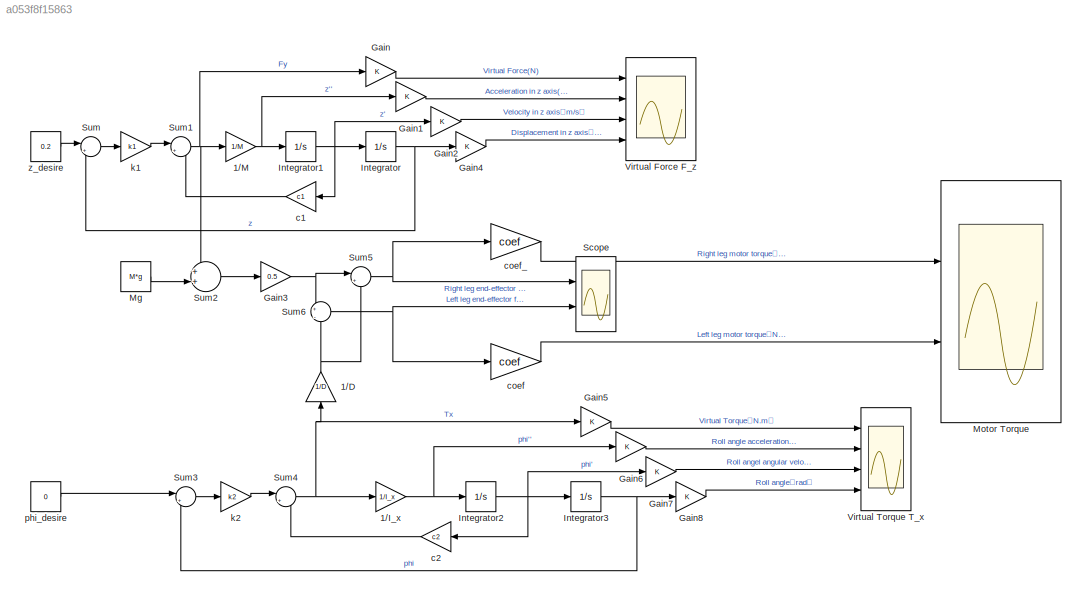
MODEL slx_a053f8f15863
KIND model
CONFIG AbsTol = auto
CONFIG EnableMultiTasking = off
CONFIG FixedStep = auto
CONFIG MaxStep = auto
CONFIG MinStep = auto
CONFIG RelTol = 1e-3
CONFIG SampleTimeConstraint = Unconstrained
CONFIG SolverName = VariableStepAuto
CONFIG StartTime = 0.0
CONFIG StopTime = 10.0
BLOCK [Gain] 1//D
  Gain = 1/D
  NameLocation = right
BLOCK [Gain] 1//I_x 
  Gain = 1/I_x
BLOCK [Gain] 1//M
  Gain = 1/M
BLOCK [Gain] Gain
BLOCK [Gain] Gain1
BLOCK [Gain] Gain2
BLOCK [Gain] Gain3
  Gain = 0.5
BLOCK [Gain] Gain4
BLOCK [Gain] Gain5
BLOCK [Gain] Gain6
BLOCK [Gain] Gain7
BLOCK [Gain] Gain8
BLOCK [Integrator] Integrator
  Ports = [1, 1]
BLOCK [Integrator] Integrator1
  Ports = [1, 1]
BLOCK [Integrator] Integrator2
  Ports = [1, 1]
BLOCK [Integrator] Integrator3
  InitialCondition = 0.2
  Ports = [1, 1]
BLOCK [Constant] Mg
  Value = M*g
BLOCK [Scope] Motor Torque
  Floating = off
  NumInputPorts = 2
  Ports = [2]
  ScopeSpecificationString = Simulink.scopes.TimeScopeBlockCfg('CurrentConfiguration', extmgr.ConfigurationSet(extmgr.Configuration('Core','General UI',true),extmgr.Configuration('Core','Source UI',true),extmgr.Configuration('Sources','WiredSimulink',true,'DataLoggingVariableName','ScopeData1'),extmgr.Configuration('Visuals','Time Domain',true,'SerializedDisplays',{struct('MinYLimReal','-0.82943','MaxYLimReal','2.65549','YLab...<+2483ch>
BLOCK [Scope] Scope
  Floating = off
  NumInputPorts = 2
  Ports = [2]
  ScopeSpecificationString = Simulink.scopes.TimeScopeBlockCfg('CurrentConfiguration', extmgr.ConfigurationSet(extmgr.Configuration('Core','General UI',true),extmgr.Configuration('Core','Source UI',true),extmgr.Configuration('Sources','WiredSimulink',true,'DataLoggingVariableName','ScopeData1'),extmgr.Configuration('Visuals','Time Domain',true,'SerializedDisplays',{struct('MinYLimReal','16.49397','MaxYLimReal','26.14344','YLa...<+2071ch>
BLOCK [Sum] Sum
  Inputs = |+-
  Ports = [2, 1]
BLOCK [Sum] Sum1
  Inputs = |+-
  Ports = [2, 1]
BLOCK [Sum] Sum2
  Inputs = ++|
  Ports = [2, 1]
BLOCK [Sum] Sum3
  Inputs = |+-
  Ports = [2, 1]
BLOCK [Sum] Sum4
  Inputs = |+-
  Ports = [2, 1]
BLOCK [Sum] Sum5
  Inputs = |++
  Ports = [2, 1]
BLOCK [Sum] Sum6
  Inputs = +|-
  Ports = [2, 1]
BLOCK [Scope] Virtual Force F_z
  Floating = off
  NumInputPorts = 4
  Ports = [4]
  ScopeSpecificationString = Simulink.scopes.TimeScopeBlockCfg('CurrentConfiguration', extmgr.ConfigurationSet(extmgr.Configuration('Core','General UI',true),extmgr.Configuration('Core','Source UI',true),extmgr.Configuration('Sources','WiredSimulink',true,'DataLoggingVariableName','ScopeData2'),extmgr.Configuration('Visuals','Time Domain',true,'SerializedDisplays',{struct('MinYLimReal','-24.06105','MaxYLimReal','91.56234','YL...<+3870ch>
BLOCK [Scope] Virtual Torque T_x
  Floating = off
  NumInputPorts = 4
  Ports = [4]
  ScopeSpecificationString = Simulink.scopes.TimeScopeBlockCfg('CurrentConfiguration', extmgr.ConfigurationSet(extmgr.Configuration('Core','General UI',true),extmgr.Configuration('Core','Source UI',true),extmgr.Configuration('Sources','WiredSimulink',true,'DataLoggingVariableName','ScopeData1'),extmgr.Configuration('Visuals','Time Domain',true,'SerializedDisplays',{struct('MinYLimReal','-27.18232','MaxYLimReal','4.64089','YLa...<+4030ch>
BLOCK [Gain] c1
  Gain = c1
BLOCK [Gain] c2
  Gain = c2
BLOCK [Gain] coef
  Gain = coef
BLOCK [Gain] coef_
  Gain = coef
BLOCK [Gain] k1
  Gain = k1
BLOCK [Gain] k2
  Gain = k2
BLOCK [Constant] phi_desire
  Value = 0
BLOCK [Constant] z_desire
  Value = 0.2
NET 1//D:1 -> Sum5:2, Sum6:2
NET 1//I_x :1 -> Gain6:1, Integrator2:1
NET 1//M:1 -> Gain1:1, Integrator1:1
LINE Gain1:1 -> Virtual Force F_z:2
LINE Gain2:1 -> Virtual Force F_z:3
NET Gain3:1 -> Sum5:1, Sum6:1
LINE Gain4:1 -> Virtual Force F_z:4
LINE Gain5:1 -> Virtual Torque T_x:1
LINE Gain6:1 -> Virtual Torque T_x:2
LINE Gain7:1 -> Virtual Torque T_x:3
LINE Gain8:1 -> Virtual Torque T_x:4
LINE Gain:1 -> Virtual Force F_z:1
NET Integrator1:1 -> Gain2:1, Integrator:1, c1:1
NET Integrator2:1 -> Gain7:1, Integrator3:1, c2:1
NET Integrator3:1 -> Gain8:1, Sum3:2
NET Integrator:1 -> Gain4:1, Sum:2
LINE Mg:1 -> Sum2:2
NET Sum1:1 -> 1//M:1, Gain:1, Sum2:1
LINE Sum2:1 -> Gain3:1
LINE Sum3:1 -> k2:1
NET Sum4:1 -> 1//D:1, 1//I_x :1, Gain5:1
NET Sum5:1 -> Scope:1, coef_:1
NET Sum6:1 -> Scope:2, coef:1
LINE Sum:1 -> k1:1
LINE c1:1 -> Sum1:2
LINE c2:1 -> Sum4:2
LINE coef:1 -> Motor Torque:2
LINE coef_:1 -> Motor Torque:1
LINE k1:1 -> Sum1:1
LINE k2:1 -> Sum4:1
LINE phi_desire:1 -> Sum3:1
LINE z_desire:1 -> Sum:1
note: NET lines group one-source signal fan-out (src -> all destinations, sorted); 1:1 wires keep LINE
